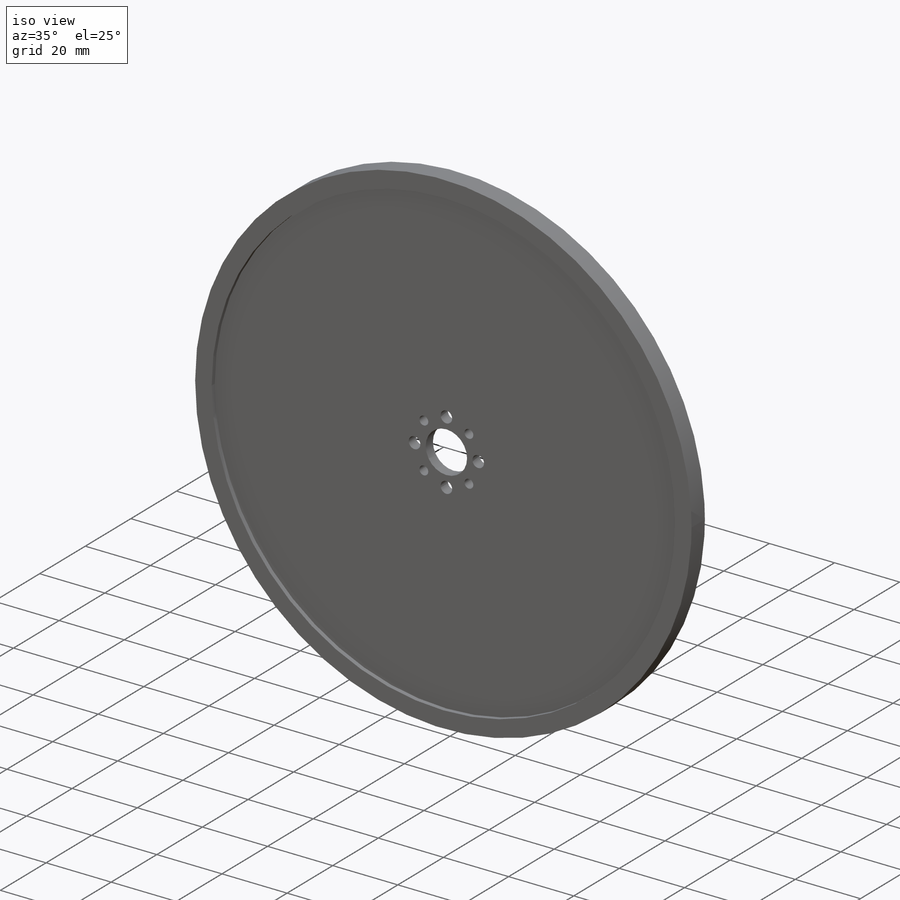
[diagram: iso view]
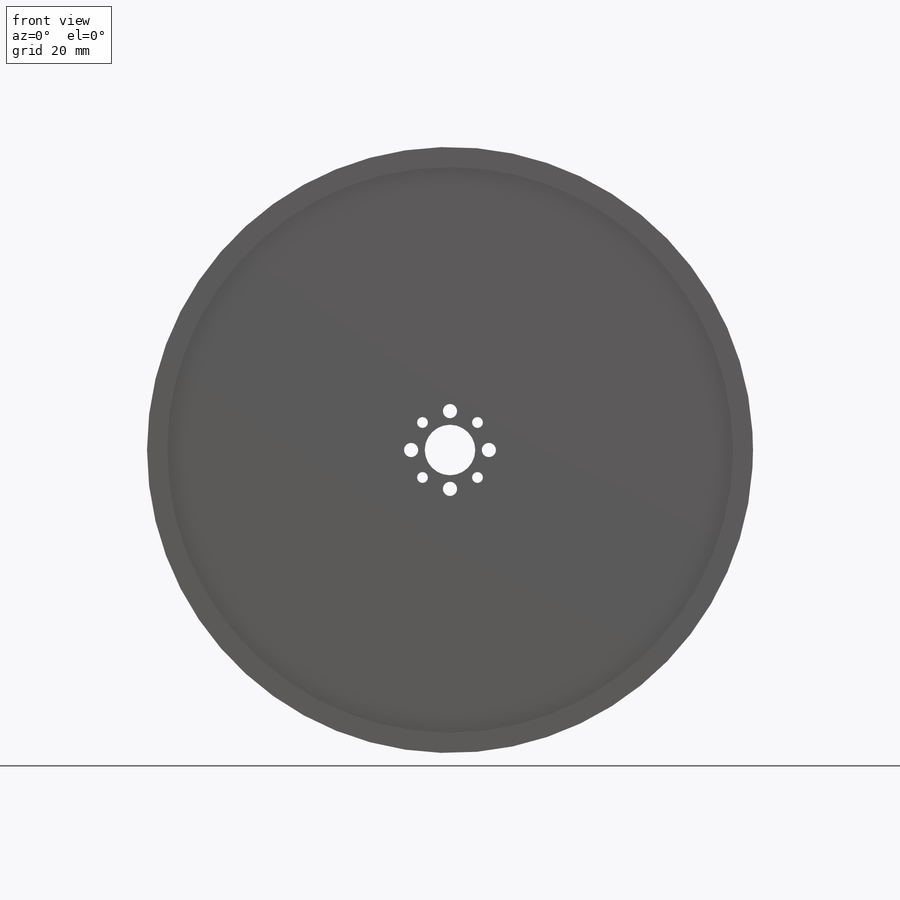
[diagram: front view]
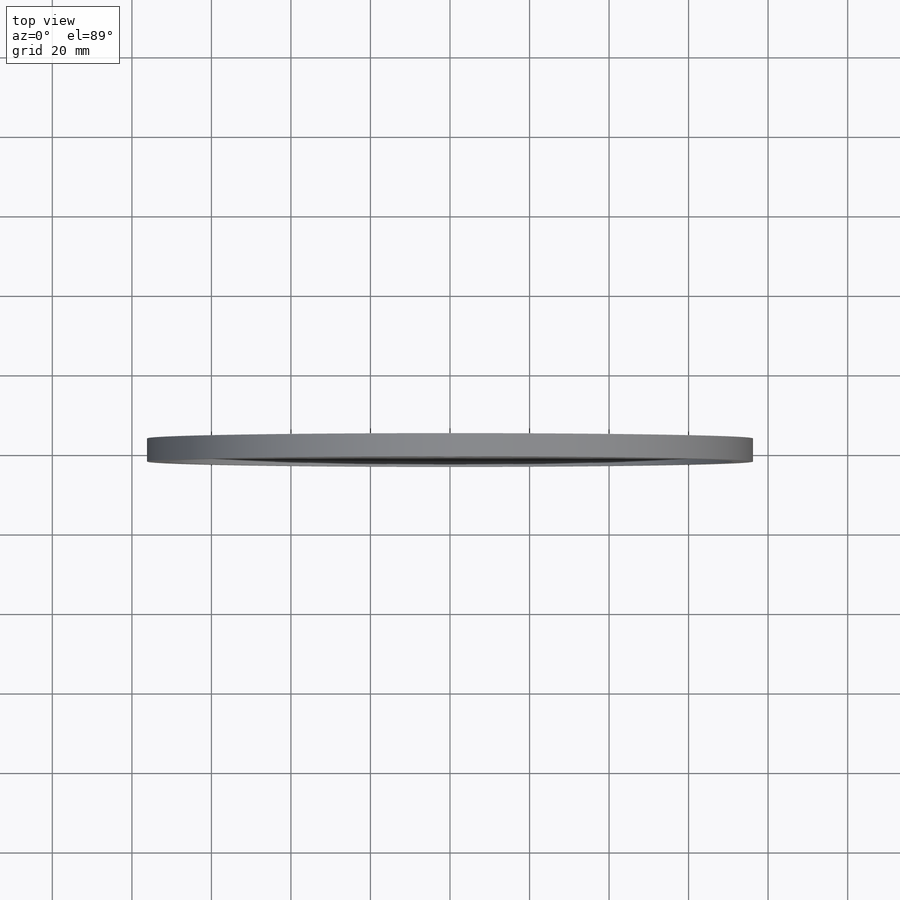
[diagram: top view]
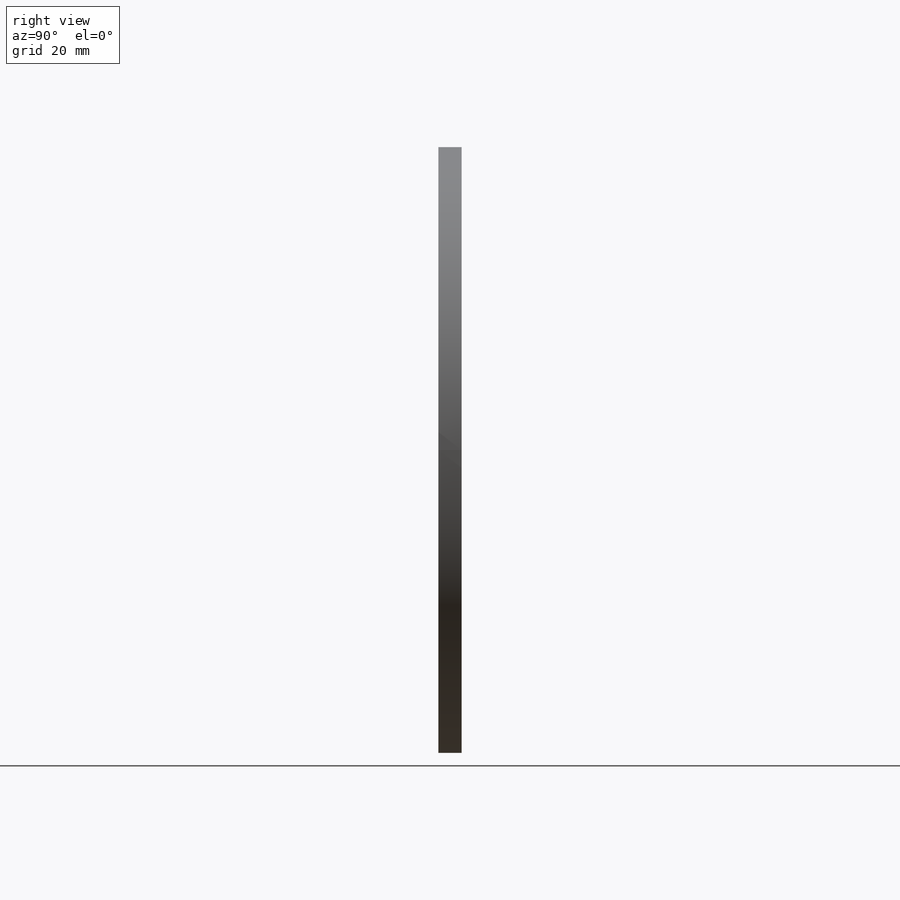
[diagram: right view]
SOLIDWORKS PART (.sldprt)
format: sldprt  version: not decoded by parser v0  size: 195,072 bytes
history: native  units: mm
features: sketch x4, extrude x2, material x1, hole x1 (+13 scaffold rows collapsed)
feature tree (21):
  scaffold x13  (default folders/planes/origin — collapsed)
  material  "Material <not specified>"
  sketch  "Sketch1"  dims[D1=152.4mm D2=142.24mm]
  extrude  "Boss-Extrude1"  Depth=5.842mm
  sketch  "Sketch3"  dims[D1=12.7mm D2=3.556mm D5=142.24mm D6=6.35mm D3=9.779mm D7=9.779mm D4=4.0]
  extrude  "Boss-Extrude2"  Depth=3.175mm
  hole  "#6-32 Tapped Hole1"  Diameter=2.7051mm Depth=3.175mm
  sketch  "Sketch5"  dims[c1.D1=9.779mm c2.D1=135.0deg c3.D1=4.0]
  sketch  "Sketch4"  dims[hole-wizard template sketch: 60 standard entries collapsed; hole parameters kept: c18.Thru Tap Drill Depth=3.175mm]
decode coverage: 7 of 7 modeling features carry decoded parameters
note: ~ marks probable driven/reference dimensions
note: suppression state not decoded; provenance and decode notes live in map.json
